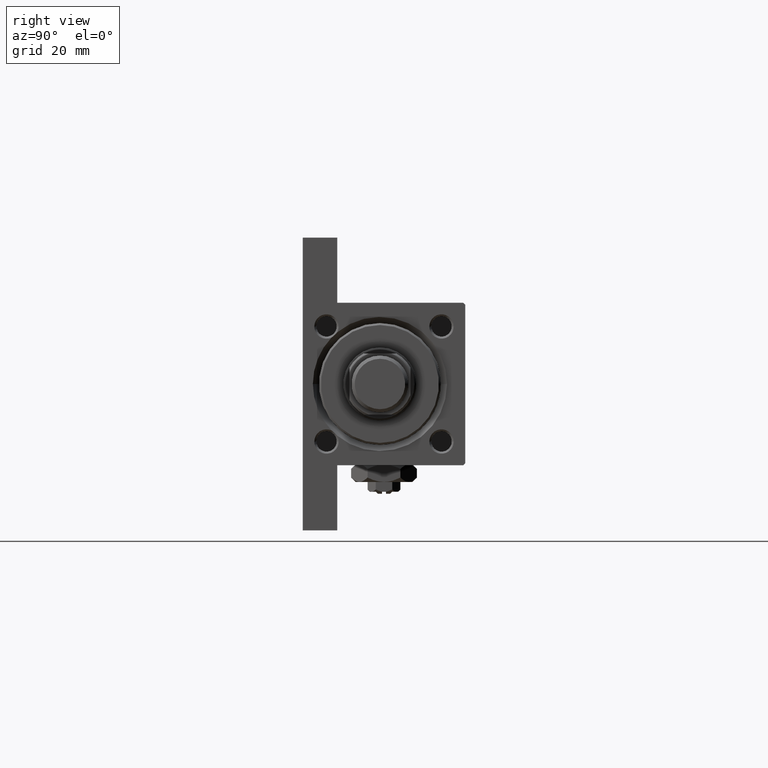
[diagram: clean part render]
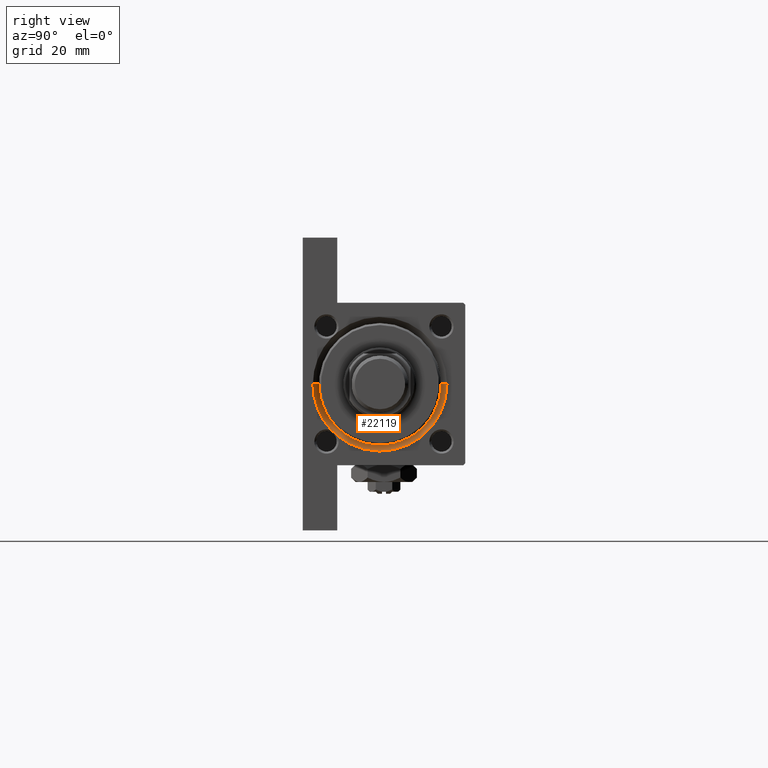
[diagram: same view with one face highlighted and labeled with its STEP entity id]
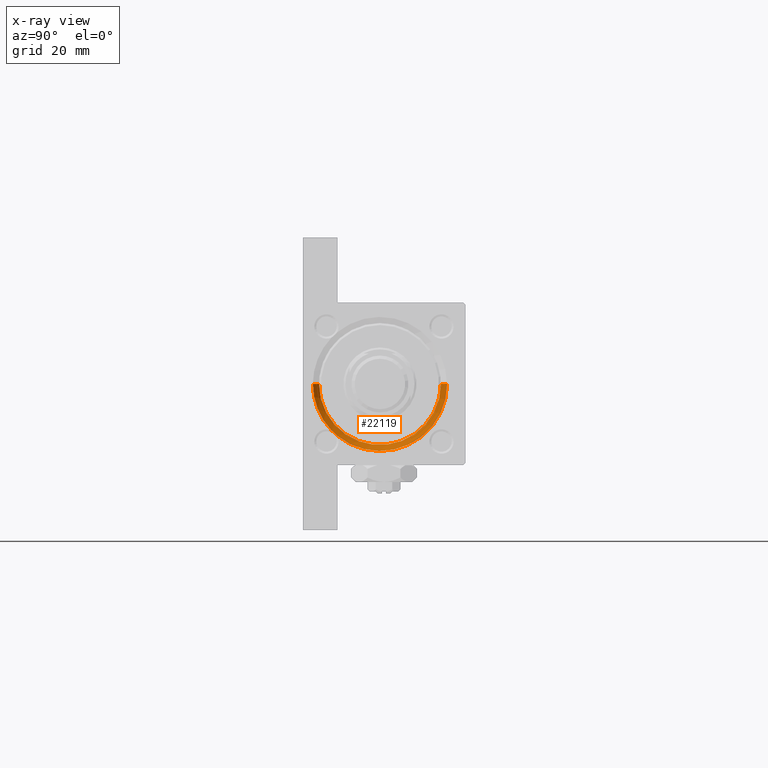
[diagram: x-ray of the same camera — body ghosted, the highlighted face saturated]
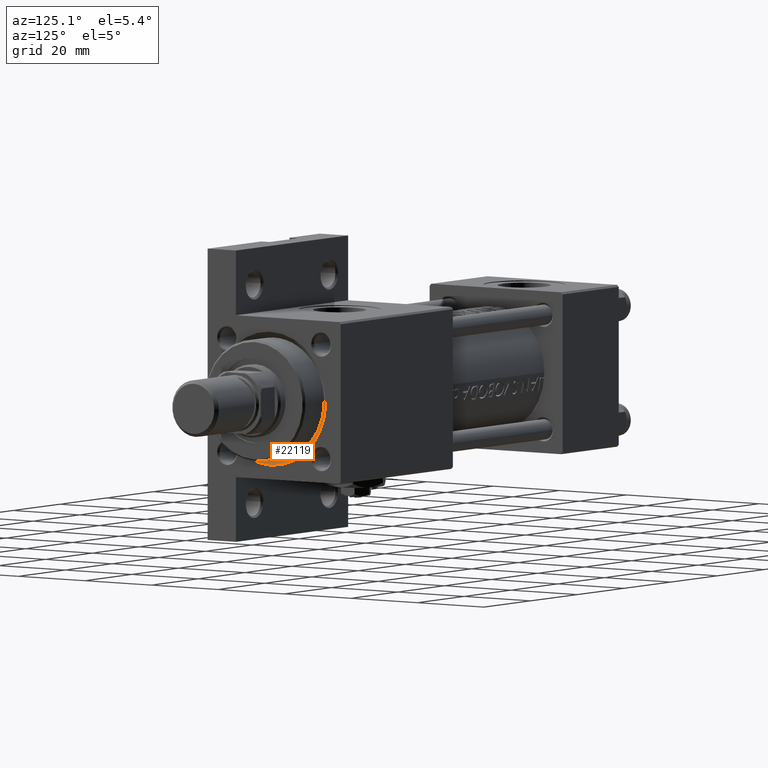
[diagram: same view with one face highlighted and labeled with its STEP entity id]
A machine part, right view. The second image highlights one B-rep face of the part: STEP entity #22119.
The next image is the same camera in x-ray: the body ghosted, the highlighted face saturated — about 0% of this face is hidden behind the body in this view.
A second angle (auxiliary view) of the same face is appended — the face is thin or edge-on in the first view.
In plain terms, the highlighted conical surface has half-angle 45 deg.
Its self-contained STEP definition (entity closure, byte-faithful):
#1897 = CIRCLE ( 'NONE', #16369, 15.00000000000000000 ) ;
#3605 = CARTESIAN_POINT ( 'NONE',  ( 118.9399059431251260, 11.60070403927867666, -12.65294814269170942 ) ) ;
#3855 = CARTESIAN_POINT ( 'NONE',  ( 118.9086984327258136, 11.80024087539722011, -12.40619927413898971 ) ) ;
#6421 = CARTESIAN_POINT ( 'NONE',  ( 119.0000000000000142, 2.020667218593134678E-15, 15.50000000000001421 ) ) ;
#6857 = DIRECTION ( 'NONE',  ( 0.000000000000000000, 0.000000000000000000, 1.000000000000000000 ) ) ;
#6880 = DIRECTION ( 'NONE',  ( 0.000000000000000000, 0.000000000000000000, -1.000000000000000000 ) ) ;
#7140 = CIRCLE ( 'NONE', #15992, 16.50000000000001421 ) ;
#7687 = VERTEX_POINT ( 'NONE', #39188 ) ;
#8836 = EDGE_CURVE ( 'NONE', #26261, #13109, #7140, .T. ) ;
#9297 = CONICAL_SURFACE ( 'NONE', #40611, 15.00000000000000000, 0.7853981633974482790 ) ;
#9492 = EDGE_LOOP ( 'NONE', ( #47286, #25704, #48285, #32938, #49524, #33171 ) ) ;
#10562 = DIRECTION ( 'NONE',  ( 0.000000000000000000, 0.000000000000000000, 1.000000000000000000 ) ) ;
#10664 = DIRECTION ( 'NONE',  ( 1.000000000000000000, 0.000000000000000000, 0.000000000000000000 ) ) ;
#10952 = DIRECTION ( 'NONE',  ( 0.7071067811865474617, 8.659560562354932858E-17, 0.7071067811865474617 ) ) ;
#13008 = DIRECTION ( 'NONE',  ( -1.000000000000000000, -0.000000000000000000, -0.000000000000000000 ) ) ;
#13109 = VERTEX_POINT ( 'NONE', #40161 ) ;
#14650 = CIRCLE ( 'NONE', #44365, 16.50000000000001421 ) ;
#14664 = DIRECTION ( 'NONE',  ( -1.000000000000000000, -0.000000000000000000, -0.000000000000000000 ) ) ;
#15551 = VERTEX_POINT ( 'NONE', #47838 ) ;
#15992 = AXIS2_PLACEMENT_3D ( 'NONE', #32132, #13008, #28361 ) ;
#16369 = AXIS2_PLACEMENT_3D ( 'NONE', #32724, #21885, #10562 ) ;
#16849 = B_SPLINE_CURVE_WITH_KNOTS ( 'NONE', 3,
 ( #29055, #3605, #3855, #49403, #45882, #46129 ),
 .UNSPECIFIED., .F., .F.,
 ( 4, 2, 4 ),
 ( 0.000000000000000000, 0.0009549214274699158699, 0.001909842854939831740 ),
 .UNSPECIFIED. ) ;
#17574 = DIRECTION ( 'NONE',  ( 0.7071067811865474617, 0.000000000000000000, -0.7071067811865474617 ) ) ;
#18415 = EDGE_CURVE ( 'NONE', #7687, #15551, #1897, .T. ) ;
#18714 = EDGE_CURVE ( 'NONE', #7687, #44445, #32667, .T. ) ;
#21885 = DIRECTION ( 'NONE',  ( 1.000000000000000000, 0.000000000000000000, 0.000000000000000000 ) ) ;
#22076 = CARTESIAN_POINT ( 'NONE',  ( 117.5000000000000000, 0.000000000000000000, -16.00000000000000000 ) ) ;
#22119 = ADVANCED_FACE ( 'NONE', ( #33570 ), #9297, .F. ) ;
#24807 = EDGE_CURVE ( 'NONE', #26580, #13109, #16849, .T. ) ;
#25704 = ORIENTED_EDGE ( 'NONE', *, *, #18415, .F. ) ;
#26261 = VERTEX_POINT ( 'NONE', #6421 ) ;
#26336 = EDGE_CURVE ( 'NONE', #15551, #26261, #33357, .T. ) ;
#26580 = VERTEX_POINT ( 'NONE', #48636 ) ;
#28361 = DIRECTION ( 'NONE',  ( 0.000000000000000000, 0.000000000000000000, 1.000000000000000000 ) ) ;
#29055 = CARTESIAN_POINT ( 'NONE',  ( 119.0000000000000142, 11.41741110086830346, -12.91187322606187315 ) ) ;
#29786 = CARTESIAN_POINT ( 'NONE',  ( 117.5000000000000000, 0.000000000000000000, -1.000000000000000888 ) ) ;
#32132 = CARTESIAN_POINT ( 'NONE',  ( 119.0000000000000142, 0.000000000000000000, -1.000000000000000888 ) ) ;
#32667 = LINE ( 'NONE', #22076, #38922 ) ;
#32724 = CARTESIAN_POINT ( 'NONE',  ( 117.5000000000000000, 0.000000000000000000, -1.000000000000000888 ) ) ;
#32938 = ORIENTED_EDGE ( 'NONE', *, *, #34695, .F. ) ;
#33171 = ORIENTED_EDGE ( 'NONE', *, *, #8836, .F. ) ;
#33357 = LINE ( 'NONE', #45415, #46289 ) ;
#33552 = CARTESIAN_POINT ( 'NONE',  ( 119.0000000000000142, 0.000000000000000000, -1.000000000000000888 ) ) ;
#33570 = FACE_OUTER_BOUND ( 'NONE', #9492, .T. ) ;
#34695 = EDGE_CURVE ( 'NONE', #26580, #44445, #14650, .T. ) ;
#38361 = CARTESIAN_POINT ( 'NONE',  ( 119.0000000000000142, 0.000000000000000000, -17.50000000000001421 ) ) ;
#38922 = VECTOR ( 'NONE', #17574, 1000.000000000000114 ) ;
#39188 = CARTESIAN_POINT ( 'NONE',  ( 117.5000000000000000, 0.000000000000000000, -16.00000000000000000 ) ) ;
#40161 = CARTESIAN_POINT ( 'NONE',  ( 119.0000000000000142, 12.71526989445523803, -11.51531794627060989 ) ) ;
#40611 = AXIS2_PLACEMENT_3D ( 'NONE', #29786, #10664, #6880 ) ;
#44365 = AXIS2_PLACEMENT_3D ( 'NONE', #33552, #14664, #6857 ) ;
#44445 = VERTEX_POINT ( 'NONE', #38361 ) ;
#45415 = CARTESIAN_POINT ( 'NONE',  ( 117.5000000000000000, 1.836970198721029589E-15, 13.99999999999999822 ) ) ;
#45882 = CARTESIAN_POINT ( 'NONE',  ( 118.9398626170885933, 12.47027226269688605, -11.71720857897606116 ) ) ;
#46129 = CARTESIAN_POINT ( 'NONE',  ( 119.0000000000000142, 12.71526989445523803, -11.51531794627060989 ) ) ;
#46289 = VECTOR ( 'NONE', #10952, 1000.000000000000114 ) ;
#47286 = ORIENTED_EDGE ( 'NONE', *, *, #26336, .F. ) ;
#47838 = CARTESIAN_POINT ( 'NONE',  ( 117.5000000000000000, 1.836970198721029589E-15, 13.99999999999999822 ) ) ;
#48285 = ORIENTED_EDGE ( 'NONE', *, *, #18714, .T. ) ;
#48636 = CARTESIAN_POINT ( 'NONE',  ( 119.0000000000000142, 11.41741110086830346, -12.91187322606187315 ) ) ;
#49403 = CARTESIAN_POINT ( 'NONE',  ( 118.9082653050944600, 12.23416909603873748, -11.93882805397925928 ) ) ;
#49524 = ORIENTED_EDGE ( 'NONE', *, *, #24807, .T. ) ;